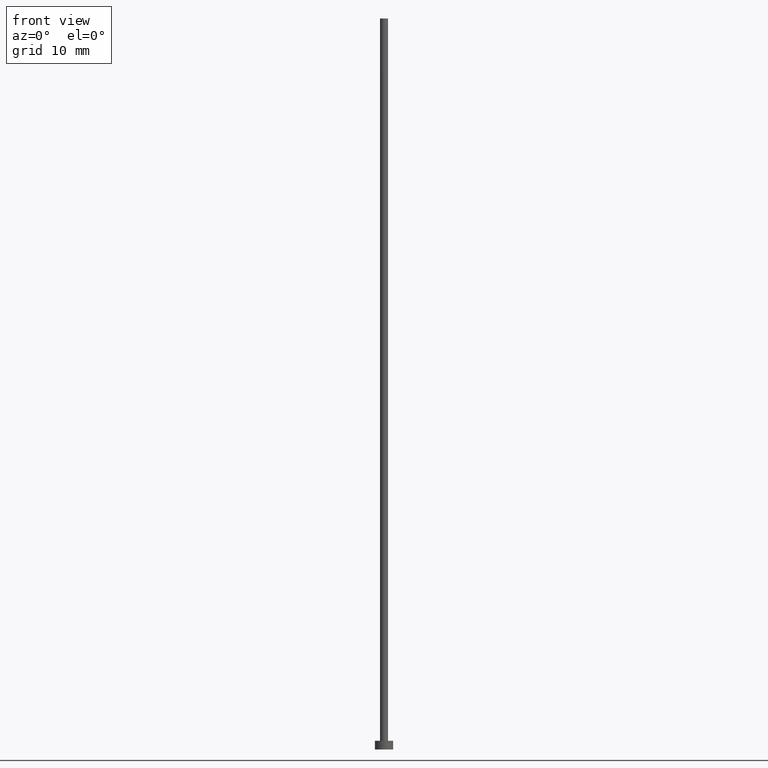
[diagram: clean part render]
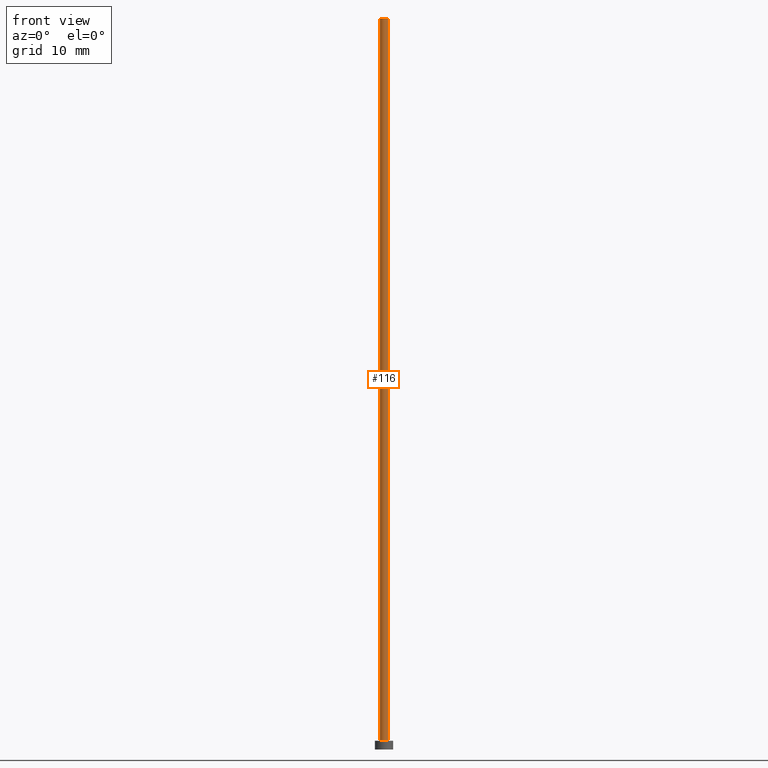
[diagram: same view with one face highlighted and labeled with its STEP entity id]
A machine part, front view. The second image highlights one B-rep face of the part: STEP entity #116.
In plain terms, the highlighted cylindrical surface (edge-blend (fillet) strip) has radius 0.55 mm, axis along (-0, -0, -1).
Its self-contained STEP definition (entity closure, byte-faithful):
#2 = EDGE_CURVE ( 'NONE', #182, #102, #30, .T. ) ;
#4 = CARTESIAN_POINT ( 'NONE',  ( 0.5500000000000000444, 6.735557395310442516E-17, 100.0000000000000000 ) ) ;
#17 = CARTESIAN_POINT ( 'NONE',  ( 0.000000000000000000, 0.000000000000000000, 1.199999999999999956 ) ) ;
#21 = LINE ( 'NONE', #253, #233 ) ;
#30 = LINE ( 'NONE', #53, #146 ) ;
#32 = CYLINDRICAL_SURFACE ( 'NONE', #151, 0.5500000000000000444 ) ;
#36 = EDGE_CURVE ( 'NONE', #186, #102, #134, .T. ) ;
#37 = DIRECTION ( 'NONE',  ( 0.000000000000000000, 0.000000000000000000, 1.000000000000000000 ) ) ;
#43 = ORIENTED_EDGE ( 'NONE', *, *, #2, .F. ) ;
#48 = ORIENTED_EDGE ( 'NONE', *, *, #192, .F. ) ;
#52 = DIRECTION ( 'NONE',  ( -1.000000000000000000, 0.000000000000000000, 0.000000000000000000 ) ) ;
#53 = CARTESIAN_POINT ( 'NONE',  ( 0.5500000000000000444, 6.735557395310442516E-17, 100.0000000000000000 ) ) ;
#56 = FACE_OUTER_BOUND ( 'NONE', #227, .T. ) ;
#72 = DIRECTION ( 'NONE',  ( 1.000000000000000000, 0.000000000000000000, 0.000000000000000000 ) ) ;
#78 = CARTESIAN_POINT ( 'NONE',  ( -0.5500000000000000444, 0.000000000000000000, 1.199999999999999956 ) ) ;
#89 = DIRECTION ( 'NONE',  ( -0.000000000000000000, -0.000000000000000000, -1.000000000000000000 ) ) ;
#90 = AXIS2_PLACEMENT_3D ( 'NONE', #17, #37, #72 ) ;
#102 = VERTEX_POINT ( 'NONE', #208 ) ;
#113 = EDGE_CURVE ( 'NONE', #247, #186, #21, .T. ) ;
#116 = ADVANCED_FACE ( 'NONE', ( #56 ), #32, .T. ) ;
#123 = AXIS2_PLACEMENT_3D ( 'NONE', #125, #149, #147 ) ;
#125 = CARTESIAN_POINT ( 'NONE',  ( 0.000000000000000000, 0.000000000000000000, 100.0000000000000000 ) ) ;
#134 = CIRCLE ( 'NONE', #90, 0.5500000000000000444 ) ;
#146 = VECTOR ( 'NONE', #226, 1000.000000000000000 ) ;
#147 = DIRECTION ( 'NONE',  ( 1.000000000000000000, 0.000000000000000000, 0.000000000000000000 ) ) ;
#149 = DIRECTION ( 'NONE',  ( 0.000000000000000000, 0.000000000000000000, 1.000000000000000000 ) ) ;
#150 = ORIENTED_EDGE ( 'NONE', *, *, #36, .T. ) ;
#151 = AXIS2_PLACEMENT_3D ( 'NONE', #228, #89, #52 ) ;
#163 = ORIENTED_EDGE ( 'NONE', *, *, #113, .T. ) ;
#166 = CARTESIAN_POINT ( 'NONE',  ( -0.5500000000000000444, 0.000000000000000000, 100.0000000000000000 ) ) ;
#182 = VERTEX_POINT ( 'NONE', #4 ) ;
#186 = VERTEX_POINT ( 'NONE', #78 ) ;
#192 = EDGE_CURVE ( 'NONE', #247, #182, #231, .T. ) ;
#208 = CARTESIAN_POINT ( 'NONE',  ( 0.5500000000000000444, 6.735557395310442516E-17, 1.199999999999999956 ) ) ;
#226 = DIRECTION ( 'NONE',  ( -0.000000000000000000, -0.000000000000000000, -1.000000000000000000 ) ) ;
#227 = EDGE_LOOP ( 'NONE', ( #43, #48, #163, #150 ) ) ;
#228 = CARTESIAN_POINT ( 'NONE',  ( 0.000000000000000000, 0.000000000000000000, 100.0000000000000000 ) ) ;
#230 = DIRECTION ( 'NONE',  ( -0.000000000000000000, -0.000000000000000000, -1.000000000000000000 ) ) ;
#231 = CIRCLE ( 'NONE', #123, 0.5500000000000000444 ) ;
#233 = VECTOR ( 'NONE', #230, 1000.000000000000000 ) ;
#247 = VERTEX_POINT ( 'NONE', #166 ) ;
#253 = CARTESIAN_POINT ( 'NONE',  ( -0.5500000000000000444, 0.000000000000000000, 100.0000000000000000 ) ) ;